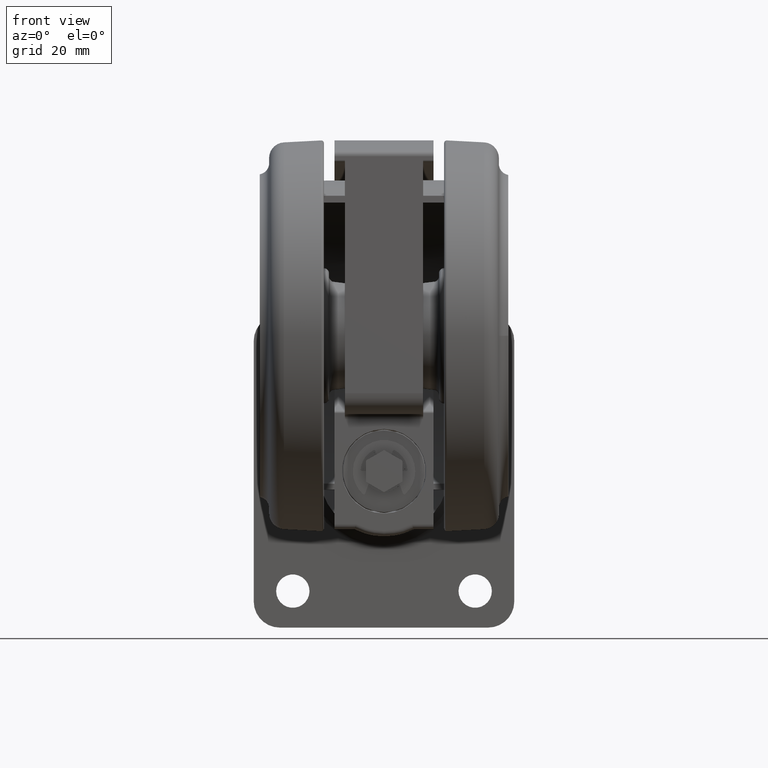
[diagram: clean part render]
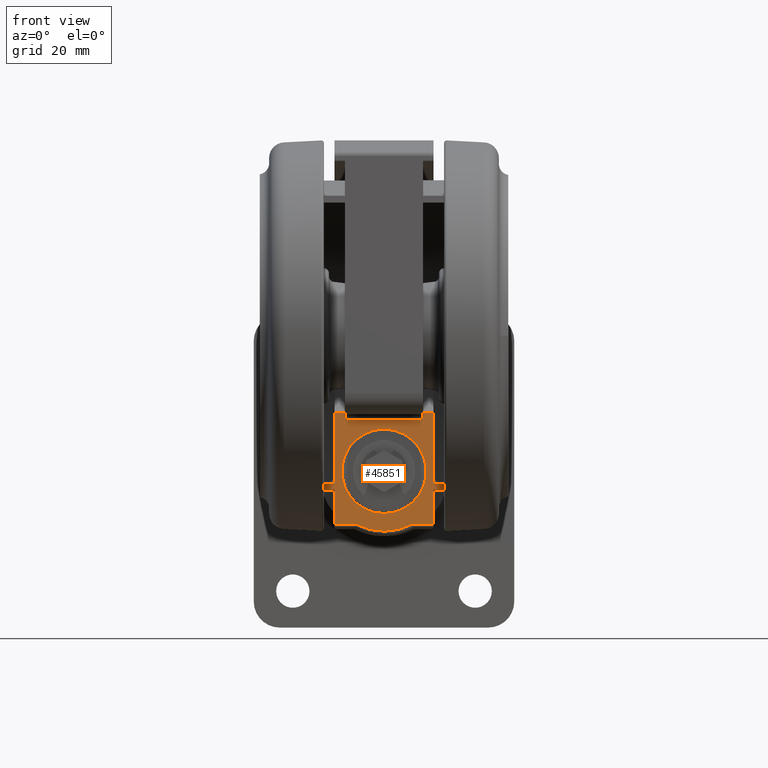
[diagram: same view with one face highlighted and labeled with its STEP entity id]
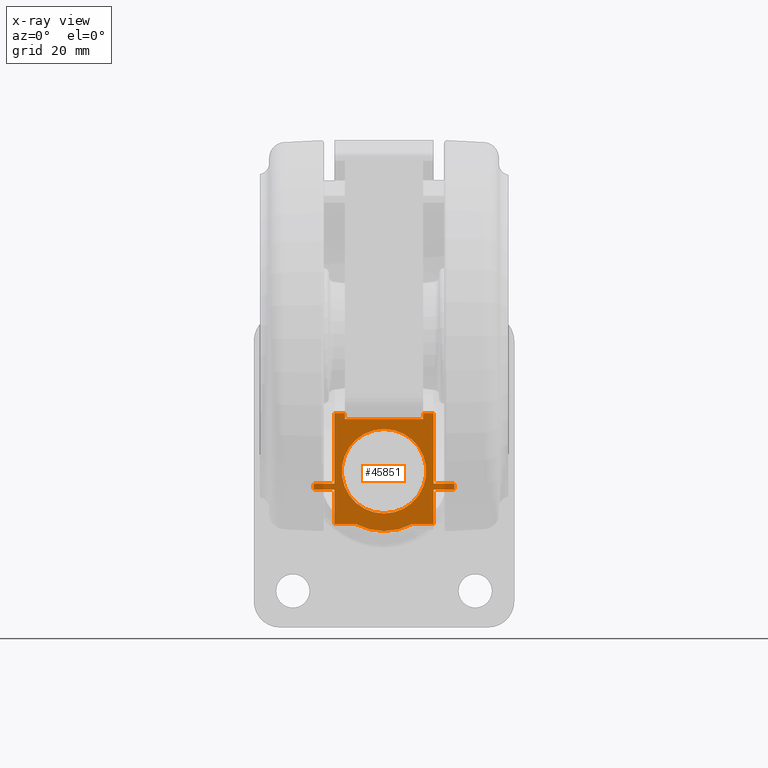
[diagram: x-ray of the same camera — body ghosted, the highlighted face saturated]
A machine part, front view. The second image highlights one B-rep face of the part: STEP entity #45851.
The next image is the same camera in x-ray: the body ghosted, the highlighted face saturated — about 2% of this face is hidden behind the body in this view.
In plain terms, the highlighted planar face has unit normal (0, 1, 0).
Its self-contained STEP definition (entity closure, byte-faithful):
#291 = CARTESIAN_POINT ( 'NONE',  ( -4.000000000000096800, 29.58077923246783700, -10.54999999999999700 ) ) ;
#358 = CARTESIAN_POINT ( 'NONE',  ( -4.000000000000095900, 29.43200825745262300, -37.35000000000000100 ) ) ;
#421 = DIRECTION ( 'NONE',  ( 3.275157922644210200E-015, -1.000000000000000000, 0.0000000000000000000 ) ) ;
#426 = B_SPLINE_CURVE_WITH_KNOTS ( 'NONE', 3,
 ( #291, #41293, #45866, #18511, #50431, #23103 ),
 .UNSPECIFIED., .F., .F.,
 ( 4, 2, 4 ),
 ( 0.0000000000000000000, 0.0001569330248006840700, 0.0003138660496013681400 ),
 .UNSPECIFIED. ) ;
#865 = VECTOR ( 'NONE', #57735, 1000.000000000000000 ) ;
#877 = VERTEX_POINT ( 'NONE', #26074 ) ;
#1677 = LINE ( 'NONE', #55252, #36568 ) ;
#2278 = EDGE_CURVE ( 'NONE', #43743, #16761, #31209, .T. ) ;
#3180 = VERTEX_POINT ( 'NONE', #42188 ) ;
#3211 = DIRECTION ( 'NONE',  ( 1.000000000000000000, 3.275157922644210200E-015, -0.0000000000000000000 ) ) ;
#3680 = LINE ( 'NONE', #30658, #865 ) ;
#3983 = CARTESIAN_POINT ( 'NONE',  ( -4.000000000000048800, 14.83239697419130500, -31.34999999999999400 ) ) ;
#4057 = CARTESIAN_POINT ( 'NONE',  ( -4.000000000000052400, 15.99999999999998600, -31.34999999999999400 ) ) ;
#4471 = ORIENTED_EDGE ( 'NONE', *, *, #2278, .F. ) ;
#5205 = ORIENTED_EDGE ( 'NONE', *, *, #27203, .F. ) ;
#5625 = CARTESIAN_POINT ( 'NONE',  ( -4.000000000000093300, 28.36939371928838600, -10.54999999999999700 ) ) ;
#6358 = EDGE_CURVE ( 'NONE', #44512, #38245, #25738, .T. ) ;
#6533 = DIRECTION ( 'NONE',  ( 1.000000000000000000, 3.275157922644210200E-015, 0.0000000000000000000 ) ) ;
#6758 = EDGE_CURVE ( 'NONE', #3180, #45704, #17856, .T. ) ;
#7249 = CARTESIAN_POINT ( 'NONE',  ( -4.000000000000093300, 28.36939371928838600, -37.34999999999999400 ) ) ;
#7282 = AXIS2_PLACEMENT_3D ( 'NONE', #33830, #6533, #38422 ) ;
#7678 = VERTEX_POINT ( 'NONE', #16060 ) ;
#8107 = CARTESIAN_POINT ( 'NONE',  ( -4.000000000000048800, 14.83239697419130500, -33.34999999999999400 ) ) ;
#8461 = FACE_BOUND ( 'NONE', #30928, .T. ) ;
#8542 = ORIENTED_EDGE ( 'NONE', *, *, #6758, .T. ) ;
#8575 = EDGE_LOOP ( 'NONE', ( #4471, #55467, #33470, #24282, #53654, #56706, #8542, #15967, #30684, #26747, #32063, #17580, #38872, #55701, #16361, #49101, #19269, #12290, #49656, #35601, #56510, #57708 ) ) ;
#8846 = EDGE_CURVE ( 'NONE', #10334, #877, #35574, .T. ) ;
#8881 = DIRECTION ( 'NONE',  ( 3.275157922644210200E-015, -1.000000000000000000, 0.0000000000000000000 ) ) ;
#9472 = CARTESIAN_POINT ( 'NONE',  ( -4.000000000000096800, 29.55862169295383900, -37.25499536593746800 ) ) ;
#9693 = DIRECTION ( 'NONE',  ( 0.0000000000000000000, 0.0000000000000000000, 1.000000000000000000 ) ) ;
#10186 = DIRECTION ( 'NONE',  ( -0.0000000000000000000, 0.0000000000000000000, 1.000000000000000000 ) ) ;
#10334 = VERTEX_POINT ( 'NONE', #5625 ) ;
#11890 = CARTESIAN_POINT ( 'NONE',  ( -4.000000000000048800, 14.83239697419130500, -16.34999999999999800 ) ) ;
#12028 = ORIENTED_EDGE ( 'NONE', *, *, #55400, .F. ) ;
#12092 = EDGE_CURVE ( 'NONE', #13157, #49796, #46603, .T. ) ;
#12247 = CARTESIAN_POINT ( 'NONE',  ( -4.000000000000111900, 34.09999999999998700, -23.84999999999999800 ) ) ;
#12290 = ORIENTED_EDGE ( 'NONE', *, *, #12092, .F. ) ;
#12520 = CARTESIAN_POINT ( 'NONE',  ( -4.000000000000093300, 28.39158465030599700, -10.44497892426927500 ) ) ;
#12577 = VECTOR ( 'NONE', #52462, 1000.000000000000000 ) ;
#12887 = VERTEX_POINT ( 'NONE', #4057 ) ;
#13157 = VERTEX_POINT ( 'NONE', #55987 ) ;
#13681 = EDGE_CURVE ( 'NONE', #18051, #12887, #3680, .T. ) ;
#13804 = CARTESIAN_POINT ( 'NONE',  ( -4.000000000000093300, 28.36939371928838900, -37.20308414330381900 ) ) ;
#14051 = CARTESIAN_POINT ( 'NONE',  ( -4.000000000000096800, 29.58077923246783700, -37.14999999999999900 ) ) ;
#14226 = VERTEX_POINT ( 'NONE', #12247 ) ;
#14270 = CARTESIAN_POINT ( 'NONE',  ( -4.000000000000093300, 28.36939371928838600, -37.14999999999999900 ) ) ;
#14915 = CARTESIAN_POINT ( 'NONE',  ( -4.000000000000096800, 29.58077923246783700, -33.34999999999999400 ) ) ;
#15266 = B_SPLINE_CURVE_WITH_KNOTS ( 'NONE', 3,
 ( #36765, #358, #22977, #9472, #41360, #14051 ),
 .UNSPECIFIED., .F., .F.,
 ( 4, 2, 4 ),
 ( 0.0000000000000000000, 0.0001569339558858610500, 0.0003138679117717221000 ),
 .UNSPECIFIED. ) ;
#15514 = EDGE_CURVE ( 'NONE', #39122, #44579, #29109, .T. ) ;
#15891 = VECTOR ( 'NONE', #53307, 1000.000000000000000 ) ;
#15967 = ORIENTED_EDGE ( 'NONE', *, *, #28668, .T. ) ;
#16060 = CARTESIAN_POINT ( 'NONE',  ( -4.000000000000058600, 17.89999999999998400, -23.84999999999999800 ) ) ;
#16361 = ORIENTED_EDGE ( 'NONE', *, *, #46881, .T. ) ;
#16715 = CARTESIAN_POINT ( 'NONE',  ( -4.000000000000096800, 29.58077923246783700, -37.14999999999999900 ) ) ;
#16761 = VERTEX_POINT ( 'NONE', #48604 ) ;
#17101 = CARTESIAN_POINT ( 'NONE',  ( -4.000000000000093300, 28.36939371928838600, -10.54999999999999700 ) ) ;
#17116 = DIRECTION ( 'NONE',  ( 0.0000000000000000000, -0.0000000000000000000, -1.000000000000000000 ) ) ;
#17580 = ORIENTED_EDGE ( 'NONE', *, *, #15514, .F. ) ;
#17794 = PLANE ( 'NONE',  #22747 ) ;
#17856 = LINE ( 'NONE', #11890, #51388 ) ;
#18051 = VERTEX_POINT ( 'NONE', #3983 ) ;
#18269 = CARTESIAN_POINT ( 'NONE',  ( -4.000000000000048800, 14.83239697419130500, -33.34999999999999400 ) ) ;
#18451 = CARTESIAN_POINT ( 'NONE',  ( -4.000000000000119000, 36.15591237958183500, -33.34999999999999400 ) ) ;
#18511 = CARTESIAN_POINT ( 'NONE',  ( -4.000000000000097700, 29.48410987994311200, -10.37150553221618700 ) ) ;
#18567 = CARTESIAN_POINT ( 'NONE',  ( -4.000000000000093300, 28.36939371928838600, -33.34999999999999400 ) ) ;
#18867 = CARTESIAN_POINT ( 'NONE',  ( -4.000000000000049700, 14.99999999999998600, -33.34999999999999400 ) ) ;
#19039 = VECTOR ( 'NONE', #37927, 1000.000000000000000 ) ;
#19269 = ORIENTED_EDGE ( 'NONE', *, *, #23268, .T. ) ;
#19274 = B_SPLINE_CURVE_WITH_KNOTS ( 'NONE', 3,
 ( #45688, #13804, #50242, #22923, #54777, #27517 ),
 .UNSPECIFIED., .F., .F.,
 ( 4, 2, 4 ),
 ( 0.0000000000000000000, 0.0001569829722070411200, 0.0003139659444140822400 ),
 .UNSPECIFIED. ) ;
#19311 = DIRECTION ( 'NONE',  ( -3.275157922644210200E-015, 1.000000000000000000, 0.0000000000000000000 ) ) ;
#19383 = EDGE_CURVE ( 'NONE', #38245, #44032, #51598, .T. ) ;
#19389 = EDGE_CURVE ( 'NONE', #58748, #37856, #48741, .T. ) ;
#19643 = EDGE_CURVE ( 'NONE', #13157, #44512, #50861, .T. ) ;
#19726 = CARTESIAN_POINT ( 'NONE',  ( -4.000000000000096800, 29.58077923246783700, -10.34999999999999600 ) ) ;
#20134 = EDGE_CURVE ( 'NONE', #43616, #24937, #15266, .T. ) ;
#20428 = LINE ( 'NONE', #36642, #53924 ) ;
#21961 = FACE_OUTER_BOUND ( 'NONE', #8575, .T. ) ;
#22017 = AXIS2_PLACEMENT_3D ( 'NONE', #30489, #3211, #35104 ) ;
#22370 = CARTESIAN_POINT ( 'NONE',  ( -4.000000000000049700, 14.99999999999998600, -33.34999999999999400 ) ) ;
#22624 = CARTESIAN_POINT ( 'NONE',  ( -4.000000000000085300, 25.99999999999998600, -23.84999999999999800 ) ) ;
#22747 = AXIS2_PLACEMENT_3D ( 'NONE', #22370, #36191, #8881 ) ;
#22923 = CARTESIAN_POINT ( 'NONE',  ( -4.000000000000094100, 28.46615721369277500, -37.32850718963551600 ) ) ;
#22977 = CARTESIAN_POINT ( 'NONE',  ( -4.000000000000096800, 29.48395325777676100, -37.32859632455254200 ) ) ;
#23103 = CARTESIAN_POINT ( 'NONE',  ( -4.000000000000095900, 29.37894654340073300, -10.34999999999999600 ) ) ;
#23268 = EDGE_CURVE ( 'NONE', #24937, #49796, #1677, .T. ) ;
#23446 = DIRECTION ( 'NONE',  ( 3.275157922644210200E-015, -1.000000000000000000, 0.0000000000000000000 ) ) ;
#24282 = ORIENTED_EDGE ( 'NONE', *, *, #47982, .T. ) ;
#24453 = VECTOR ( 'NONE', #10186, 1000.000000000000000 ) ;
#24937 = VERTEX_POINT ( 'NONE', #16715 ) ;
#25738 = CIRCLE ( 'NONE', #22017, 11.50000000000000000 ) ;
#26074 = CARTESIAN_POINT ( 'NONE',  ( -4.000000000000093300, 28.36939371928838600, -14.34999999999999600 ) ) ;
#26585 = VECTOR ( 'NONE', #50364, 1000.000000000000000 ) ;
#26747 = ORIENTED_EDGE ( 'NONE', *, *, #13681, .F. ) ;
#27203 = EDGE_CURVE ( 'NONE', #14226, #7678, #30436, .T. ) ;
#27209 = DIRECTION ( 'NONE',  ( -3.319532577486482900E-015, 1.000000000000000000, 0.0000000000000000000 ) ) ;
#27517 = CARTESIAN_POINT ( 'NONE',  ( -4.000000000000094100, 28.57135803562718800, -37.34999999999999400 ) ) ;
#28202 = DIRECTION ( 'NONE',  ( -2.084059678535471100E-014, 1.000000000000000000, 0.0000000000000000000 ) ) ;
#28315 = CARTESIAN_POINT ( 'NONE',  ( -4.000000000000049700, 14.99999999999998600, -14.34999999999999600 ) ) ;
#28668 = EDGE_CURVE ( 'NONE', #45704, #56503, #43835, .T. ) ;
#28780 = EDGE_CURVE ( 'NONE', #44032, #16761, #50204, .T. ) ;
#28810 = B_SPLINE_CURVE_WITH_KNOTS ( 'NONE', 3,
 ( #35268, #53354, #39843, #12520, #44418, #17101 ),
 .UNSPECIFIED., .F., .F.,
 ( 4, 2, 4 ),
 ( 0.0000000000000000000, 0.0001569839259036879200, 0.0003139678518073758400 ),
 .UNSPECIFIED. ) ;
#29109 = LINE ( 'NONE', #41423, #39829 ) ;
#29570 = DIRECTION ( 'NONE',  ( 3.275157922644210200E-015, -1.000000000000000000, 0.0000000000000000000 ) ) ;
#29960 = DIRECTION ( 'NONE',  ( 0.0000000000000000000, 0.0000000000000000000, 1.000000000000000000 ) ) ;
#30436 = CIRCLE ( 'NONE', #53575, 8.099999999999999600 ) ;
#30489 = CARTESIAN_POINT ( 'NONE',  ( -4.000000000000085300, 26.00000000000523300, -23.84999999999995200 ) ) ;
#30658 = CARTESIAN_POINT ( 'NONE',  ( -4.000000000000048000, 14.45683229480094700, -31.34999999999999400 ) ) ;
#30684 = ORIENTED_EDGE ( 'NONE', *, *, #43712, .T. ) ;
#30928 = EDGE_LOOP ( 'NONE', ( #5205, #12028 ) ) ;
#30998 = LINE ( 'NONE', #28315, #32450 ) ;
#31209 = LINE ( 'NONE', #19726, #19039 ) ;
#32063 = ORIENTED_EDGE ( 'NONE', *, *, #51484, .T. ) ;
#32450 = VECTOR ( 'NONE', #55563, 1000.000000000000000 ) ;
#32726 = CARTESIAN_POINT ( 'NONE',  ( -4.000000000000119000, 36.15591237958183500, -14.34999999999999600 ) ) ;
#32904 = CARTESIAN_POINT ( 'NONE',  ( -4.000000000000119000, 36.15591237958183500, -33.34999999999999400 ) ) ;
#33058 = VECTOR ( 'NONE', #23446, 1000.000000000000000 ) ;
#33470 = ORIENTED_EDGE ( 'NONE', *, *, #19389, .F. ) ;
#33830 = CARTESIAN_POINT ( 'NONE',  ( -4.000000000000085300, 25.99999999999998600, -23.84999999999999800 ) ) ;
#35104 = DIRECTION ( 'NONE',  ( 3.243178672478378300E-015, -1.000000000000000000, 1.810146235801885700E-015 ) ) ;
#35268 = CARTESIAN_POINT ( 'NONE',  ( -4.000000000000094100, 28.57135803562718800, -10.34999999999999600 ) ) ;
#35574 = LINE ( 'NONE', #57950, #58337 ) ;
#35601 = ORIENTED_EDGE ( 'NONE', *, *, #6358, .T. ) ;
#36076 = CARTESIAN_POINT ( 'NONE',  ( -4.000000000000119000, 36.15591237958148700, -29.24513148480826500 ) ) ;
#36191 = DIRECTION ( 'NONE',  ( -1.000000000000000000, -3.275157922644210200E-015, 0.0000000000000000000 ) ) ;
#36568 = VECTOR ( 'NONE', #9693, 1000.000000000000000 ) ;
#36642 = CARTESIAN_POINT ( 'NONE',  ( -4.000000000000093300, 28.36939371928838600, -37.34999999999999400 ) ) ;
#36765 = CARTESIAN_POINT ( 'NONE',  ( -4.000000000000095900, 29.37894654340073300, -37.34999999999999400 ) ) ;
#36854 = LINE ( 'NONE', #38947, #12577 ) ;
#36856 = CARTESIAN_POINT ( 'NONE',  ( -4.000000000000094100, 28.57135803562718800, -10.34999999999999600 ) ) ;
#37856 = VERTEX_POINT ( 'NONE', #48037 ) ;
#37927 = DIRECTION ( 'NONE',  ( 0.0000000000000000000, -0.0000000000000000000, -1.000000000000000000 ) ) ;
#38132 = VECTOR ( 'NONE', #29570, 1000.000000000000000 ) ;
#38180 = CARTESIAN_POINT ( 'NONE',  ( -4.000000000000095900, 29.37894654340073300, -37.34999999999999400 ) ) ;
#38245 = VERTEX_POINT ( 'NONE', #42270 ) ;
#38422 = DIRECTION ( 'NONE',  ( -3.319532577486482900E-015, 1.000000000000000000, 0.0000000000000000000 ) ) ;
#38789 = CARTESIAN_POINT ( 'NONE',  ( -4.000000000000048800, 14.83239697419130500, -16.34999999999999800 ) ) ;
#38872 = ORIENTED_EDGE ( 'NONE', *, *, #48929, .F. ) ;
#38947 = CARTESIAN_POINT ( 'NONE',  ( -4.000000000000052400, 15.99999999999998600, -31.34999999999999400 ) ) ;
#39122 = VERTEX_POINT ( 'NONE', #18567 ) ;
#39213 = DIRECTION ( 'NONE',  ( 0.0000000000000000000, -0.0000000000000000000, -1.000000000000000000 ) ) ;
#39756 = VERTEX_POINT ( 'NONE', #43244 ) ;
#39829 = VECTOR ( 'NONE', #421, 1000.000000000000000 ) ;
#39843 = CARTESIAN_POINT ( 'NONE',  ( -4.000000000000094100, 28.46631565657631700, -10.37138920760206800 ) ) ;
#41293 = CARTESIAN_POINT ( 'NONE',  ( -4.000000000000095900, 29.58077923246782600, -10.49693302348560500 ) ) ;
#41360 = CARTESIAN_POINT ( 'NONE',  ( -4.000000000000096800, 29.58077923246840500, -37.20307558644261500 ) ) ;
#41423 = CARTESIAN_POINT ( 'NONE',  ( -4.000000000000049700, 14.99999999999998600, -33.34999999999999400 ) ) ;
#42188 = CARTESIAN_POINT ( 'NONE',  ( -4.000000000000048800, 14.83239697419130500, -14.34999999999999600 ) ) ;
#42270 = CARTESIAN_POINT ( 'NONE',  ( -4.000000000000119000, 36.15591237958148700, -18.45486851519163500 ) ) ;
#42467 = VECTOR ( 'NONE', #29960, 1000.000000000000000 ) ;
#43244 = CARTESIAN_POINT ( 'NONE',  ( -4.000000000000094100, 28.57135803562718800, -37.34999999999999400 ) ) ;
#43616 = VERTEX_POINT ( 'NONE', #38180 ) ;
#43674 = CARTESIAN_POINT ( 'NONE',  ( -4.000000000000052400, 15.99999999999998600, -16.34999999999999800 ) ) ;
#43712 = EDGE_CURVE ( 'NONE', #56503, #12887, #36854, .T. ) ;
#43743 = VERTEX_POINT ( 'NONE', #57434 ) ;
#43835 = LINE ( 'NONE', #50917, #54455 ) ;
#43952 = EDGE_CURVE ( 'NONE', #50033, #39756, #19274, .T. ) ;
#44032 = VERTEX_POINT ( 'NONE', #32726 ) ;
#44418 = CARTESIAN_POINT ( 'NONE',  ( -4.000000000000094100, 28.36939371928781700, -10.49690660869670500 ) ) ;
#44512 = VERTEX_POINT ( 'NONE', #36076 ) ;
#44579 = VERTEX_POINT ( 'NONE', #18269 ) ;
#45688 = CARTESIAN_POINT ( 'NONE',  ( -4.000000000000093300, 28.36939371928838600, -37.14999999999999900 ) ) ;
#45704 = VERTEX_POINT ( 'NONE', #38789 ) ;
#45851 = ADVANCED_FACE ( 'NONE', ( #21961, #8461 ), #17794, .F. ) ;
#45866 = CARTESIAN_POINT ( 'NONE',  ( -4.000000000000096800, 29.55866965728097600, -10.44510458324805000 ) ) ;
#46603 = LINE ( 'NONE', #18867, #33058 ) ;
#46881 = EDGE_CURVE ( 'NONE', #39756, #43616, #20428, .T. ) ;
#47327 = VECTOR ( 'NONE', #19311, 1000.000000000000000 ) ;
#47982 = EDGE_CURVE ( 'NONE', #58748, #10334, #28810, .T. ) ;
#48037 = CARTESIAN_POINT ( 'NONE',  ( -4.000000000000095900, 29.37894654340073300, -10.34999999999999600 ) ) ;
#48604 = CARTESIAN_POINT ( 'NONE',  ( -4.000000000000096800, 29.58077923246783700, -14.34999999999999600 ) ) ;
#48741 = LINE ( 'NONE', #55750, #47327 ) ;
#48929 = EDGE_CURVE ( 'NONE', #50033, #39122, #55932, .T. ) ;
#49101 = ORIENTED_EDGE ( 'NONE', *, *, #20134, .T. ) ;
#49213 = EDGE_CURVE ( 'NONE', #877, #3180, #30998, .T. ) ;
#49656 = ORIENTED_EDGE ( 'NONE', *, *, #19643, .T. ) ;
#49796 = VERTEX_POINT ( 'NONE', #14915 ) ;
#50033 = VERTEX_POINT ( 'NONE', #14270 ) ;
#50204 = LINE ( 'NONE', #56832, #38132 ) ;
#50242 = CARTESIAN_POINT ( 'NONE',  ( -4.000000000000094100, 28.39153868611645800, -37.25492324937436500 ) ) ;
#50364 = DIRECTION ( 'NONE',  ( -0.0000000000000000000, 0.0000000000000000000, 1.000000000000000000 ) ) ;
#50431 = CARTESIAN_POINT ( 'NONE',  ( -4.000000000000095900, 29.43200004097268900, -10.34999999999864100 ) ) ;
#50562 = EDGE_CURVE ( 'NONE', #43743, #37856, #426, .T. ) ;
#50815 = LINE ( 'NONE', #8107, #15891 ) ;
#50861 = LINE ( 'NONE', #18451, #26585 ) ;
#50917 = CARTESIAN_POINT ( 'NONE',  ( -4.000000000000048000, 14.45683229480094700, -16.34999999999999800 ) ) ;
#51388 = VECTOR ( 'NONE', #39213, 1000.000000000000000 ) ;
#51484 = EDGE_CURVE ( 'NONE', #18051, #44579, #50815, .T. ) ;
#51598 = LINE ( 'NONE', #32904, #24453 ) ;
#52462 = DIRECTION ( 'NONE',  ( -0.0000000000000000000, -0.0000000000000000000, -1.000000000000000000 ) ) ;
#53307 = DIRECTION ( 'NONE',  ( 0.0000000000000000000, -0.0000000000000000000, -1.000000000000000000 ) ) ;
#53324 = CIRCLE ( 'NONE', #7282, 8.099999999999999600 ) ;
#53354 = CARTESIAN_POINT ( 'NONE',  ( -4.000000000000093300, 28.51827945038287400, -10.35000000000000000 ) ) ;
#53575 = AXIS2_PLACEMENT_3D ( 'NONE', #22624, #54478, #27209 ) ;
#53654 = ORIENTED_EDGE ( 'NONE', *, *, #8846, .T. ) ;
#53924 = VECTOR ( 'NONE', #54129, 1000.000000000000000 ) ;
#54129 = DIRECTION ( 'NONE',  ( -3.275157922644210200E-015, 1.000000000000000000, 0.0000000000000000000 ) ) ;
#54455 = VECTOR ( 'NONE', #28202, 1000.000000000000000 ) ;
#54478 = DIRECTION ( 'NONE',  ( 1.000000000000000000, 3.275157922644210200E-015, 0.0000000000000000000 ) ) ;
#54777 = CARTESIAN_POINT ( 'NONE',  ( -4.000000000000094100, 28.51828831281232700, -37.35000000000139400 ) ) ;
#55252 = CARTESIAN_POINT ( 'NONE',  ( -4.000000000000096800, 29.58077923246783700, -37.34999999999999400 ) ) ;
#55400 = EDGE_CURVE ( 'NONE', #7678, #14226, #53324, .T. ) ;
#55467 = ORIENTED_EDGE ( 'NONE', *, *, #50562, .T. ) ;
#55563 = DIRECTION ( 'NONE',  ( 3.275157922644210200E-015, -1.000000000000000000, 0.0000000000000000000 ) ) ;
#55701 = ORIENTED_EDGE ( 'NONE', *, *, #43952, .T. ) ;
#55750 = CARTESIAN_POINT ( 'NONE',  ( -4.000000000000093300, 28.36939371928838600, -10.34999999999999600 ) ) ;
#55932 = LINE ( 'NONE', #7249, #42467 ) ;
#55987 = CARTESIAN_POINT ( 'NONE',  ( -4.000000000000119000, 36.15591237958183500, -33.34999999999999400 ) ) ;
#56503 = VERTEX_POINT ( 'NONE', #43674 ) ;
#56510 = ORIENTED_EDGE ( 'NONE', *, *, #19383, .T. ) ;
#56706 = ORIENTED_EDGE ( 'NONE', *, *, #49213, .T. ) ;
#56832 = CARTESIAN_POINT ( 'NONE',  ( -4.000000000000049700, 14.99999999999998600, -14.34999999999999600 ) ) ;
#57434 = CARTESIAN_POINT ( 'NONE',  ( -4.000000000000096800, 29.58077923246783700, -10.54999999999999700 ) ) ;
#57708 = ORIENTED_EDGE ( 'NONE', *, *, #28780, .T. ) ;
#57735 = DIRECTION ( 'NONE',  ( -2.084059678535471100E-014, 1.000000000000000000, 0.0000000000000000000 ) ) ;
#57950 = CARTESIAN_POINT ( 'NONE',  ( -4.000000000000093300, 28.36939371928838600, -10.34999999999999600 ) ) ;
#58337 = VECTOR ( 'NONE', #17116, 1000.000000000000000 ) ;
#58748 = VERTEX_POINT ( 'NONE', #36856 ) ;